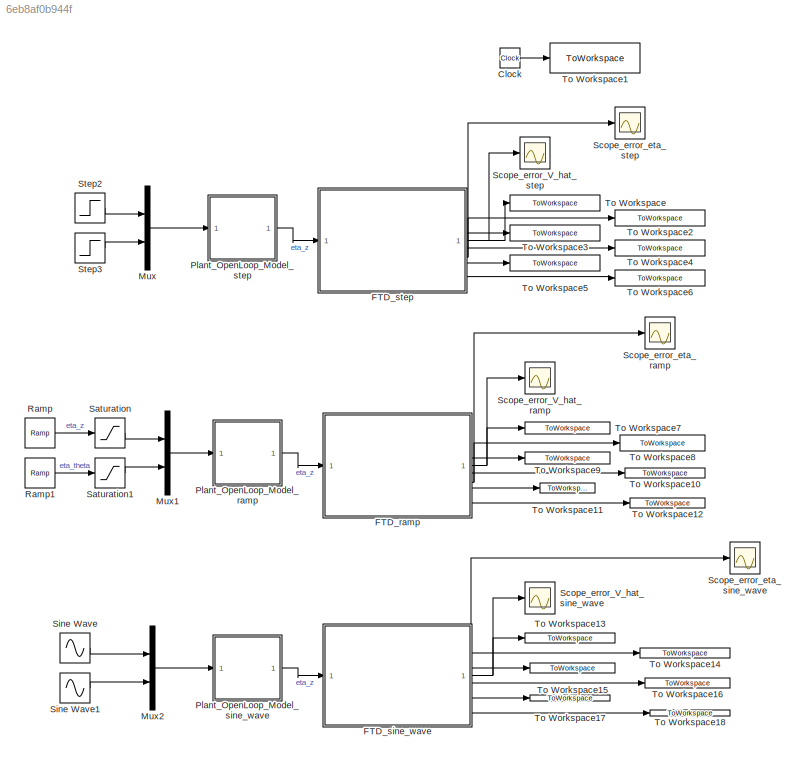
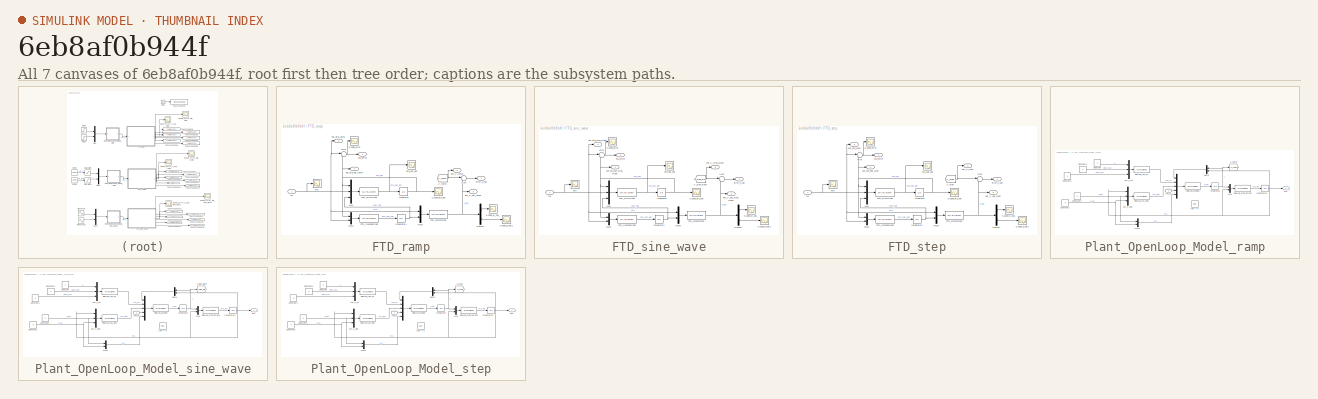
[diagram: thumbnail index - all 7 canvases of the model, root first then tree order]
MODEL slx_6eb8af0b944f
KIND model
CONFIG AbsTol = auto
CONFIG EnableMultiTasking = off
CONFIG FixedStep = 0.001
CONFIG MaxStep = auto
CONFIG MinStep = auto
CONFIG RelTol = 1e-3
CONFIG SampleTimeConstraint = Unconstrained
CONFIG SolverName = FixedStepAuto
CONFIG StartTime = 0.0
CONFIG StopTime = 150
BLOCK [Clock] Clock
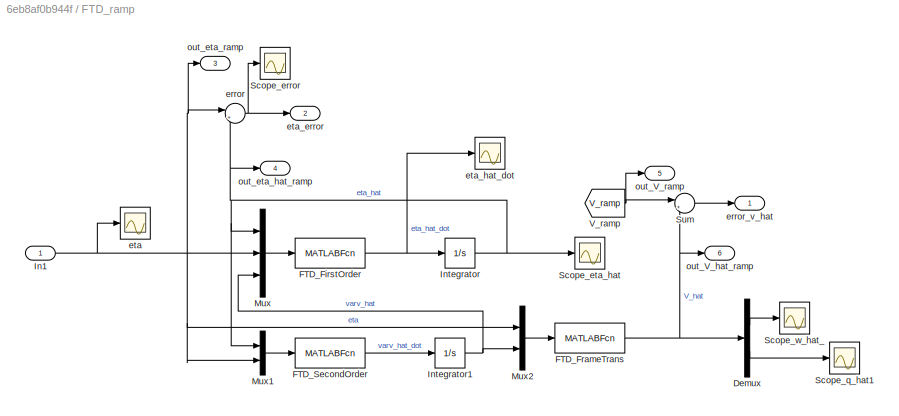
BLOCK [SubSystem] FTD_ramp
BLOCK [Demux] FTD_ramp/Demux
  Outputs = 2
BLOCK [MATLABFcn] FTD_ramp/FTD_FirstOrder
  MATLABFcn = FTD_FirstOrder
  OutputDimensions = 2
  OutputSignalType = real
BLOCK [MATLABFcn] FTD_ramp/FTD_FrameTrans
  MATLABFcn = FTD_FrameTrans
  OutputDimensions = 2
  OutputSignalType = real
BLOCK [MATLABFcn] FTD_ramp/FTD_SecondOrder
  MATLABFcn = FTD_SecondOrder
  OutputDimensions = 2
  OutputSignalType = real
BLOCK [Inport] FTD_ramp/In1
BLOCK [Integrator] FTD_ramp/Integrator
BLOCK [Integrator] FTD_ramp/Integrator1
BLOCK [Mux] FTD_ramp/Mux
  DisplayOption = bar
  Inputs = 3
BLOCK [Mux] FTD_ramp/Mux1
  DisplayOption = bar
  Inputs = 2
BLOCK [Mux] FTD_ramp/Mux2
  DisplayOption = bar
  Inputs = 2
BLOCK [Scope] FTD_ramp/Scope_error
  Floating = off
  NumInputPorts = 1
  ScopeSpecificationString = Simulink.scopes.TimeScopeBlockCfg('CurrentConfiguration', extmgr.ConfigurationSet(extmgr.Configuration('Core','General UI',true),extmgr.Configuration('Core','Source UI',true),extmgr.Configuration('Sources','WiredSimulink',true,'DataLoggingVariableName','ScopeData2'),extmgr.Configuration('Visuals','Time Domain',true,'SerializedDisplays',{struct('MinYLimReal','-0.00868','MaxYLimReal','0.01148','YLab...<+1426ch>  <repeated x3 — deduplicated; at blocks: Scope_error>
BLOCK [Scope] FTD_ramp/Scope_eta_hat
  Floating = off
  NumInputPorts = 1
  ScopeSpecificationString = Simulink.scopes.TimeScopeBlockCfg('CurrentConfiguration', extmgr.ConfigurationSet(extmgr.Configuration('Core','General UI',true),extmgr.Configuration('Core','Source UI',true),extmgr.Configuration('Sources','WiredSimulink',true,'DataLoggingVariableName','ScopeData3'),extmgr.Configuration('Visuals','Time Domain',true,'SerializedDisplays',{struct('MinYLimReal','-3.15863','MaxYLimReal','9.11216','YLab...<+1466ch>  <repeated x3 — deduplicated; at blocks: Scope_eta_hat>
BLOCK [Scope] FTD_ramp/Scope_q_hat1
  Floating = off
  NumInputPorts = 1
  ScopeSpecificationString = Simulink.scopes.TimeScopeBlockCfg('CurrentConfiguration', extmgr.ConfigurationSet(extmgr.Configuration('Core','General UI',true),extmgr.Configuration('Core','Source UI',true),extmgr.Configuration('Sources','WiredSimulink',true,'DataLoggingVariableName','ScopeData4'),extmgr.Configuration('Visuals','Time Domain',true,'SerializedDisplays',{struct('MinYLimReal','-0.12714','MaxYLimReal','1.1443','YLabe...<+1395ch>  <repeated x3 — deduplicated; at blocks: Scope_q_hat1>
BLOCK [Scope] FTD_ramp/Scope_w_hat_
  Floating = off
  NumInputPorts = 1
  ScopeSpecificationString = Simulink.scopes.TimeScopeBlockCfg('CurrentConfiguration', extmgr.ConfigurationSet(extmgr.Configuration('Core','General UI',true),extmgr.Configuration('Core','Source UI',true),extmgr.Configuration('Sources','WiredSimulink',true,'DataLoggingVariableName','ScopeData5'),extmgr.Configuration('Visuals','Time Domain',true,'SerializedDisplays',{struct('MinYLimReal','-0.51851','MaxYLimReal','4.66663','YLab...<+1398ch>  <repeated x3 — deduplicated; at blocks: Scope_w_hat_>
BLOCK [Sum] FTD_ramp/Sum
  Inputs = |+-
BLOCK [From] FTD_ramp/V_ramp
  GotoTag = V_ramp
  TagVisibility = global
BLOCK [Sum] FTD_ramp/error
  Inputs = |+-
BLOCK [Outport] FTD_ramp/error_v_hat
BLOCK [Scope] FTD_ramp/eta
  Floating = off
  NumInputPorts = 1
  ScopeSpecificationString = Simulink.scopes.TimeScopeBlockCfg('CurrentConfiguration', extmgr.ConfigurationSet(extmgr.Configuration('Core','General UI',true),extmgr.Configuration('Core','Source UI',true),extmgr.Configuration('Sources','WiredSimulink',true,'DataLoggingVariableName','ScopeData6'),extmgr.Configuration('Visuals','Time Domain',true,'SerializedDisplays',{struct('MinYLimReal','-0.125','MaxYLimReal','1.125','YLabelRe...<+1570ch>  <repeated x3 — deduplicated; at blocks: eta>
BLOCK [Outport] FTD_ramp/eta_error
  Port = 2
BLOCK [Scope] FTD_ramp/eta_hat_dot
  Floating = off
  NumInputPorts = 1
  ScopeSpecificationString = Simulink.scopes.TimeScopeBlockCfg('CurrentConfiguration', extmgr.ConfigurationSet(extmgr.Configuration('Core','General UI',true),extmgr.Configuration('Core','Source UI',true),extmgr.Configuration('Sources','WiredSimulink',true),extmgr.Configuration('Visuals','Time Domain',true,'SerializedDisplays',{struct('MinYLimReal','-497.7515','MaxYLimReal','1166.41683','YLabelReal','','MinYLimMag',' 0.00000',...<+1549ch>  <repeated x3 — deduplicated; at blocks: eta_hat_dot>
BLOCK [Outport] FTD_ramp/out_V_hat_ramp
  Port = 6
BLOCK [Outport] FTD_ramp/out_V_ramp
  Port = 5
BLOCK [Outport] FTD_ramp/out_eta_hat_ramp
  Port = 4
BLOCK [Outport] FTD_ramp/out_eta_ramp
  Port = 3
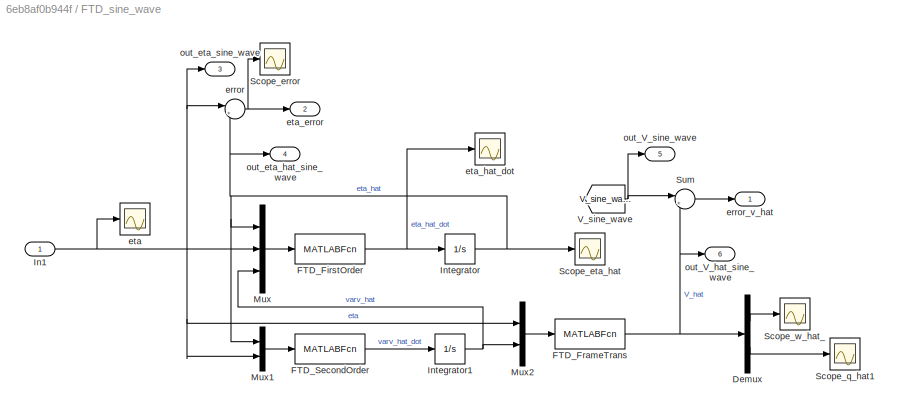
BLOCK [SubSystem] FTD_sine_wave
BLOCK [Demux] FTD_sine_wave/Demux
  Outputs = 2
BLOCK [MATLABFcn] FTD_sine_wave/FTD_FirstOrder
  MATLABFcn = FTD_FirstOrder
  OutputDimensions = 2
  OutputSignalType = real
BLOCK [MATLABFcn] FTD_sine_wave/FTD_FrameTrans
  MATLABFcn = FTD_FrameTrans
  OutputDimensions = 2
  OutputSignalType = real
BLOCK [MATLABFcn] FTD_sine_wave/FTD_SecondOrder
  MATLABFcn = FTD_SecondOrder
  OutputDimensions = 2
  OutputSignalType = real
BLOCK [Inport] FTD_sine_wave/In1
BLOCK [Integrator] FTD_sine_wave/Integrator
BLOCK [Integrator] FTD_sine_wave/Integrator1
BLOCK [Mux] FTD_sine_wave/Mux
  DisplayOption = bar
  Inputs = 3
BLOCK [Mux] FTD_sine_wave/Mux1
  DisplayOption = bar
  Inputs = 2
BLOCK [Mux] FTD_sine_wave/Mux2
  DisplayOption = bar
  Inputs = 2
BLOCK [Scope] FTD_sine_wave/Scope_error
  Floating = off
  NumInputPorts = 1
BLOCK [Scope] FTD_sine_wave/Scope_eta_hat
  Floating = off
  NumInputPorts = 1
BLOCK [Scope] FTD_sine_wave/Scope_q_hat1
  Floating = off
  NumInputPorts = 1
BLOCK [Scope] FTD_sine_wave/Scope_w_hat_
  Floating = off
  NumInputPorts = 1
BLOCK [Sum] FTD_sine_wave/Sum
  Inputs = |+-
BLOCK [From] FTD_sine_wave/V_sine_wave
  GotoTag = V_sine_wave
  TagVisibility = global
BLOCK [Sum] FTD_sine_wave/error
  Inputs = |+-
BLOCK [Outport] FTD_sine_wave/error_v_hat
BLOCK [Scope] FTD_sine_wave/eta
  Floating = off
  NumInputPorts = 1
BLOCK [Outport] FTD_sine_wave/eta_error
  Port = 2
BLOCK [Scope] FTD_sine_wave/eta_hat_dot
  Floating = off
  NumInputPorts = 1
BLOCK [Outport] FTD_sine_wave/out_V_hat_sine_wave
  Port = 6
BLOCK [Outport] FTD_sine_wave/out_V_sine_wave
  Port = 5
BLOCK [Outport] FTD_sine_wave/out_eta_hat_sine_wave
  Port = 4
BLOCK [Outport] FTD_sine_wave/out_eta_sine_wave
  Port = 3
BLOCK [SubSystem] FTD_step
BLOCK [Demux] FTD_step/Demux
  Outputs = 2
BLOCK [MATLABFcn] FTD_step/FTD_FirstOrder
  MATLABFcn = FTD_FirstOrder
  OutputDimensions = 2
  OutputSignalType = real
BLOCK [MATLABFcn] FTD_step/FTD_FrameTrans
  MATLABFcn = FTD_FrameTrans
  OutputDimensions = 2
  OutputSignalType = real
BLOCK [MATLABFcn] FTD_step/FTD_SecondOrder
  MATLABFcn = FTD_SecondOrder
  OutputDimensions = 2
  OutputSignalType = real
BLOCK [Inport] FTD_step/In1
BLOCK [Integrator] FTD_step/Integrator
BLOCK [Integrator] FTD_step/Integrator1
BLOCK [Mux] FTD_step/Mux
  DisplayOption = bar
  Inputs = 3
BLOCK [Mux] FTD_step/Mux1
  DisplayOption = bar
  Inputs = 2
BLOCK [Mux] FTD_step/Mux2
  DisplayOption = bar
  Inputs = 2
BLOCK [Scope] FTD_step/Scope_error
  Floating = off
  NumInputPorts = 1
BLOCK [Scope] FTD_step/Scope_eta_hat
  Floating = off
  NumInputPorts = 1
BLOCK [Scope] FTD_step/Scope_q_hat1
  Floating = off
  NumInputPorts = 1
BLOCK [Scope] FTD_step/Scope_w_hat_
  Floating = off
  NumInputPorts = 1
BLOCK [Sum] FTD_step/Sum
  Inputs = |+-
BLOCK [From] FTD_step/V_step
  GotoTag = V_step
  TagVisibility = global
BLOCK [Sum] FTD_step/error
  Inputs = |+-
BLOCK [Outport] FTD_step/error_v_hat
BLOCK [Scope] FTD_step/eta
  Floating = off
  NumInputPorts = 1
BLOCK [Outport] FTD_step/eta_error
  Port = 2
BLOCK [Scope] FTD_step/eta_hat_dot
  Floating = off
  NumInputPorts = 1
BLOCK [Outport] FTD_step/out_V_hat_step
  Port = 6
BLOCK [Outport] FTD_step/out_V_step
  Port = 5
BLOCK [Outport] FTD_step/out_eta_hat_step
  Port = 4
BLOCK [Outport] FTD_step/out_eta_step
  Port = 3
BLOCK [Mux] Mux
  DisplayOption = bar
  Inputs = 2
BLOCK [Mux] Mux1
  DisplayOption = bar
  Inputs = 2
BLOCK [Mux] Mux2
  DisplayOption = bar
  Inputs = 2
BLOCK [SubSystem] Plant_OpenLoop_Model_ramp
BLOCK [Mux] Plant_OpenLoop_Model_ramp/ 
  DisplayOption = bar
  Inputs = 5
BLOCK [Constant] Plant_OpenLoop_Model_ramp/Constant
  OutDataTypeStr = Inherit: Inherit via back propagation
  Value = 2
BLOCK [Constant] Plant_OpenLoop_Model_ramp/Constant1
  Value = 0
BLOCK [Constant] Plant_OpenLoop_Model_ramp/Constant2
  Value = 0
BLOCK [Constant] Plant_OpenLoop_Model_ramp/Constant3
  Value = 0
BLOCK [Constant] Plant_OpenLoop_Model_ramp/Constant4
  Value = 0
BLOCK [Integrator] Plant_OpenLoop_Model_ramp/Integrator
BLOCK [Integrator] Plant_OpenLoop_Model_ramp/Integrator1
BLOCK [Mux] Plant_OpenLoop_Model_ramp/Mux
  DisplayOption = bar
  Inputs = 2
BLOCK [Mux] Plant_OpenLoop_Model_ramp/Mux2
  DisplayOption = bar
  Inputs = 2
BLOCK [MATLABFcn] Plant_OpenLoop_Model_ramp/REMUS_DynEqn
  MATLABFcn = REMUS_DynEqn
  OutputDimensions = 2
  OutputSignalType = real
BLOCK [MATLABFcn] Plant_OpenLoop_Model_ramp/REMUS_FrameTrans
  MATLABFcn = REMUS_FrameTrans
  OutputDimensions = 2
  OutputSignalType = real
BLOCK [MATLABFcn] Plant_OpenLoop_Model_ramp/REMUS_tau_VBS
  MATLABFcn = REMUS_tau_VBS
  OutputDimensions = 2
  OutputSignalType = real
BLOCK [MATLABFcn] Plant_OpenLoop_Model_ramp/REMUS_tau_cp
  MATLABFcn = REMUS_tau_cp
  OutputDimensions = 2
  OutputSignalType = real
BLOCK [Mux] Plant_OpenLoop_Model_ramp/V&eta
  DisplayOption = bar
  Inputs = 2
  NameLocation = top
BLOCK [Goto] Plant_OpenLoop_Model_ramp/V_ramp
  GotoTag = V_ramp
  TagVisibility = global
BLOCK [Outport] Plant_OpenLoop_Model_ramp/eta
BLOCK [Inport] Plant_OpenLoop_Model_ramp/tau_w
BLOCK [Constant] Plant_OpenLoop_Model_ramp/test = 0
  Value = [0,0]
BLOCK [Mux] Plant_OpenLoop_Model_ramp/var_c_VBS
  DisplayOption = bar
  Inputs = 3
BLOCK [Mux] Plant_OpenLoop_Model_ramp/var_c_cp
  DisplayOption = bar
  Inputs = 3
BLOCK [SubSystem] Plant_OpenLoop_Model_sine_wave
BLOCK [Mux] Plant_OpenLoop_Model_sine_wave/ 
  DisplayOption = bar
  Inputs = 5
BLOCK [Constant] Plant_OpenLoop_Model_sine_wave/Constant
  OutDataTypeStr = Inherit: Inherit via back propagation
  Value = 2
BLOCK [Constant] Plant_OpenLoop_Model_sine_wave/Constant1
  Value = 0
BLOCK [Constant] Plant_OpenLoop_Model_sine_wave/Constant2
  Value = 0
BLOCK [Constant] Plant_OpenLoop_Model_sine_wave/Constant3
  Value = 0
BLOCK [Constant] Plant_OpenLoop_Model_sine_wave/Constant4
  Value = 0
BLOCK [Integrator] Plant_OpenLoop_Model_sine_wave/Integrator
BLOCK [Integrator] Plant_OpenLoop_Model_sine_wave/Integrator1
BLOCK [Mux] Plant_OpenLoop_Model_sine_wave/Mux
  DisplayOption = bar
  Inputs = 2
BLOCK [Mux] Plant_OpenLoop_Model_sine_wave/Mux2
  DisplayOption = bar
  Inputs = 2
BLOCK [MATLABFcn] Plant_OpenLoop_Model_sine_wave/REMUS_DynEqn
  MATLABFcn = REMUS_DynEqn
  OutputDimensions = 2
  OutputSignalType = real
BLOCK [MATLABFcn] Plant_OpenLoop_Model_sine_wave/REMUS_FrameTrans
  MATLABFcn = REMUS_FrameTrans
  OutputDimensions = 2
  OutputSignalType = real
BLOCK [MATLABFcn] Plant_OpenLoop_Model_sine_wave/REMUS_tau_VBS
  MATLABFcn = REMUS_tau_VBS
  OutputDimensions = 2
  OutputSignalType = real
BLOCK [MATLABFcn] Plant_OpenLoop_Model_sine_wave/REMUS_tau_cp
  MATLABFcn = REMUS_tau_cp
  OutputDimensions = 2
  OutputSignalType = real
BLOCK [Mux] Plant_OpenLoop_Model_sine_wave/V&eta
  DisplayOption = bar
  Inputs = 2
  NameLocation = top
BLOCK [Goto] Plant_OpenLoop_Model_sine_wave/V_sine_wave
  GotoTag = V_sine_wave
  TagVisibility = global
BLOCK [Outport] Plant_OpenLoop_Model_sine_wave/eta
BLOCK [Inport] Plant_OpenLoop_Model_sine_wave/tau_w
BLOCK [Constant] Plant_OpenLoop_Model_sine_wave/test = 0
  Value = [0,0]
BLOCK [Mux] Plant_OpenLoop_Model_sine_wave/var_c_VBS
  DisplayOption = bar
  Inputs = 3
BLOCK [Mux] Plant_OpenLoop_Model_sine_wave/var_c_cp
  DisplayOption = bar
  Inputs = 3
BLOCK [SubSystem] Plant_OpenLoop_Model_step
BLOCK [Mux] Plant_OpenLoop_Model_step/ 
  DisplayOption = bar
  Inputs = 5
BLOCK [Constant] Plant_OpenLoop_Model_step/Constant
  OutDataTypeStr = Inherit: Inherit via back propagation
  Value = 2
BLOCK [Constant] Plant_OpenLoop_Model_step/Constant1
  Value = 0
BLOCK [Constant] Plant_OpenLoop_Model_step/Constant2
  Value = 0
BLOCK [Constant] Plant_OpenLoop_Model_step/Constant3
  Value = 0
BLOCK [Constant] Plant_OpenLoop_Model_step/Constant4
  Value = 0
BLOCK [Integrator] Plant_OpenLoop_Model_step/Integrator
BLOCK [Integrator] Plant_OpenLoop_Model_step/Integrator1
BLOCK [Mux] Plant_OpenLoop_Model_step/Mux
  DisplayOption = bar
  Inputs = 2
BLOCK [Mux] Plant_OpenLoop_Model_step/Mux2
  DisplayOption = bar
  Inputs = 2
BLOCK [MATLABFcn] Plant_OpenLoop_Model_step/REMUS_DynEqn
  MATLABFcn = REMUS_DynEqn
  OutputDimensions = 2
  OutputSignalType = real
BLOCK [MATLABFcn] Plant_OpenLoop_Model_step/REMUS_FrameTrans
  MATLABFcn = REMUS_FrameTrans
  OutputDimensions = 2
  OutputSignalType = real
BLOCK [MATLABFcn] Plant_OpenLoop_Model_step/REMUS_tau_VBS
  MATLABFcn = REMUS_tau_VBS
  OutputDimensions = 2
  OutputSignalType = real
BLOCK [MATLABFcn] Plant_OpenLoop_Model_step/REMUS_tau_cp
  MATLABFcn = REMUS_tau_cp
  OutputDimensions = 2
  OutputSignalType = real
BLOCK [Mux] Plant_OpenLoop_Model_step/V&eta
  DisplayOption = bar
  Inputs = 2
  NameLocation = top
BLOCK [Goto] Plant_OpenLoop_Model_step/V_step
  GotoTag = V_step
  TagVisibility = global
BLOCK [Outport] Plant_OpenLoop_Model_step/eta
BLOCK [Inport] Plant_OpenLoop_Model_step/tau_w
BLOCK [Constant] Plant_OpenLoop_Model_step/test = 0
  Value = [0,0]
BLOCK [Mux] Plant_OpenLoop_Model_step/var_c_VBS
  DisplayOption = bar
  Inputs = 3
BLOCK [Mux] Plant_OpenLoop_Model_step/var_c_cp
  DisplayOption = bar
  Inputs = 3
BLOCK [Reference] Ramp  REF=simulink/Sources/Ramp
  SourceBlock = simulink/Sources/Ramp
  SourceType = Ramp
BLOCK [Reference] Ramp1  REF=simulink/Sources/Ramp
  SourceBlock = simulink/Sources/Ramp
  SourceType = Ramp
BLOCK [Saturate] Saturation
  LowerLimit = 0
  UpperLimit = 10
BLOCK [Saturate] Saturation1
  LowerLimit = 0
  UpperLimit = 10
BLOCK [Scope] Scope_error_V_hat_ramp
  Floating = off
  NumInputPorts = 1
  ScopeSpecificationString = Simulink.scopes.TimeScopeBlockCfg('CurrentConfiguration', extmgr.ConfigurationSet(extmgr.Configuration('Core','General UI',true),extmgr.Configuration('Core','Source UI',true),extmgr.Configuration('Sources','WiredSimulink',true,'DataLoggingVariableName','ScopeData8'),extmgr.Configuration('Visuals','Time Domain',true,'SerializedDisplays',{struct('MinYLimReal','-0.00959','MaxYLimReal','0.00561','YLab...<+1440ch>
BLOCK [Scope] Scope_error_V_hat_sine_wave
  Floating = off
  NameLocation = right
  NumInputPorts = 1
  ScopeSpecificationString = Simulink.scopes.TimeScopeBlockCfg('CurrentConfiguration', extmgr.ConfigurationSet(extmgr.Configuration('Core','General UI',true),extmgr.Configuration('Core','Source UI',true),extmgr.Configuration('Sources','WiredSimulink',true,'DataLoggingVariableName','ScopeData10'),extmgr.Configuration('Visuals','Time Domain',true,'SerializedDisplays',{struct('MinYLimReal','-0.00217','MaxYLimReal','0.00217','YLa...<+1451ch>
BLOCK [Scope] Scope_error_V_hat_step
  Floating = off
  NumInputPorts = 1
  ScopeSpecificationString = Simulink.scopes.TimeScopeBlockCfg('CurrentConfiguration', extmgr.ConfigurationSet(extmgr.Configuration('Core','General UI',true),extmgr.Configuration('Core','Source UI',true),extmgr.Configuration('Sources','WiredSimulink',true,'DataLoggingVariableName','ScopeData1'),extmgr.Configuration('Visuals','Time Domain',true,'SerializedDisplays',{struct('MinYLimReal','-0.00232','MaxYLimReal','0.00219','YLab...<+1459ch>
BLOCK [Scope] Scope_error_eta_ramp
  Floating = off
  NumInputPorts = 1
  ScopeSpecificationString = Simulink.scopes.TimeScopeBlockCfg('CurrentConfiguration', extmgr.ConfigurationSet(extmgr.Configuration('Core','General UI',true),extmgr.Configuration('Core','Source UI',true),extmgr.Configuration('Sources','WiredSimulink',true,'DataLoggingVariableName','ScopeData9'),extmgr.Configuration('Visuals','Time Domain',true,'SerializedDisplays',{struct('MinYLimReal','-0.00106','MaxYLimReal','0.00105','YLab...<+1411ch>
BLOCK [Scope] Scope_error_eta_sine_wave
  Floating = off
  NumInputPorts = 1
  ScopeSpecificationString = Simulink.scopes.TimeScopeBlockCfg('CurrentConfiguration', extmgr.ConfigurationSet(extmgr.Configuration('Core','General UI',true),extmgr.Configuration('Core','Source UI',true),extmgr.Configuration('Sources','WiredSimulink',true,'DataLoggingVariableName','ScopeData11'),extmgr.Configuration('Visuals','Time Domain',true,'SerializedDisplays',{struct('MinYLimReal','-0.00105','MaxYLimReal','0.00105','YLa...<+1451ch>
BLOCK [Scope] Scope_error_eta_step
  Floating = off
  NumInputPorts = 1
  ScopeSpecificationString = Simulink.scopes.TimeScopeBlockCfg('CurrentConfiguration', extmgr.ConfigurationSet(extmgr.Configuration('Core','General UI',true),extmgr.Configuration('Core','Source UI',true),extmgr.Configuration('Sources','WiredSimulink',true,'DataLoggingVariableName','ScopeData7'),extmgr.Configuration('Visuals','Time Domain',true,'SerializedDisplays',{struct('MinYLimReal','-0.00105','MaxYLimReal','0.00105','YLab...<+1440ch>
BLOCK [Sin] Sine Wave
  Frequency = 0.5*pi
  Phase = 0.5*pi
  SampleTime = 0
BLOCK [Sin] Sine Wave1
  Frequency = 0.5*pi
  Phase = 0.5*pi
  SampleTime = 0
BLOCK [Step] Step2
  SampleTime = 0
  Time = 0
BLOCK [Step] Step3
  SampleTime = 0
  Time = 0
BLOCK [ToWorkspace] To Workspace
  FixptAsFi = on
  MaxDataPoints = inf
  SampleTime = -1
  SaveFormat = Timeseries
  VariableName = error_V_hat_step
BLOCK [ToWorkspace] To Workspace1
  FixptAsFi = on
  MaxDataPoints = inf
  SampleTime = -1
  SaveFormat = Timeseries
  VariableName = t
BLOCK [ToWorkspace] To Workspace10
  FixptAsFi = on
  MaxDataPoints = inf
  SampleTime = -1
  SaveFormat = Timeseries
  VariableName = eta_hat_ramp
BLOCK [ToWorkspace] To Workspace11
  FixptAsFi = on
  MaxDataPoints = inf
  SampleTime = -1
  SaveFormat = Timeseries
  VariableName = V_ramp
BLOCK [ToWorkspace] To Workspace12
  FixptAsFi = on
  MaxDataPoints = inf
  SampleTime = -1
  SaveFormat = Timeseries
  VariableName = V_hat_ramp
BLOCK [ToWorkspace] To Workspace13
  FixptAsFi = on
  MaxDataPoints = inf
  SampleTime = -1
  SaveFormat = Timeseries
  VariableName = error_V_hat_sine_wave
BLOCK [ToWorkspace] To Workspace14
  FixptAsFi = on
  MaxDataPoints = inf
  SampleTime = -1
  SaveFormat = Timeseries
  VariableName = error_eta_sine_wave
BLOCK [ToWorkspace] To Workspace15
  FixptAsFi = on
  MaxDataPoints = inf
  SampleTime = -1
  SaveFormat = Timeseries
  VariableName = eta_sine_wave
BLOCK [ToWorkspace] To Workspace16
  FixptAsFi = on
  MaxDataPoints = inf
  SampleTime = -1
  SaveFormat = Timeseries
  VariableName = eta_hat_sine_wave
BLOCK [ToWorkspace] To Workspace17
  FixptAsFi = on
  MaxDataPoints = inf
  SampleTime = -1
  SaveFormat = Timeseries
  VariableName = V_sine_wave
BLOCK [ToWorkspace] To Workspace18
  FixptAsFi = on
  MaxDataPoints = inf
  SampleTime = -1
  SaveFormat = Timeseries
  VariableName = V_hat_sine_wave
BLOCK [ToWorkspace] To Workspace2
  FixptAsFi = on
  MaxDataPoints = inf
  SampleTime = -1
  SaveFormat = Timeseries
  VariableName = error_eta_step
BLOCK [ToWorkspace] To Workspace3
  FixptAsFi = on
  MaxDataPoints = inf
  SampleTime = -1
  SaveFormat = Timeseries
  VariableName = eta_step
BLOCK [ToWorkspace] To Workspace4
  FixptAsFi = on
  MaxDataPoints = inf
  SampleTime = -1
  SaveFormat = Timeseries
  VariableName = eta_hat_step
BLOCK [ToWorkspace] To Workspace5
  FixptAsFi = on
  MaxDataPoints = inf
  SampleTime = -1
  SaveFormat = Timeseries
  VariableName = out_V_step
BLOCK [ToWorkspace] To Workspace6
  FixptAsFi = on
  MaxDataPoints = inf
  SampleTime = -1
  SaveFormat = Timeseries
  VariableName = V_hat_step
BLOCK [ToWorkspace] To Workspace7
  FixptAsFi = on
  MaxDataPoints = inf
  SampleTime = -1
  SaveFormat = Timeseries
  VariableName = error_V_hat_ramp
BLOCK [ToWorkspace] To Workspace8
  FixptAsFi = on
  MaxDataPoints = inf
  SampleTime = -1
  SaveFormat = Timeseries
  VariableName = error_eta_ramp
BLOCK [ToWorkspace] To Workspace9
  FixptAsFi = on
  MaxDataPoints = inf
  SampleTime = -1
  SaveFormat = Timeseries
  VariableName = eta_ramp
LINE Clock:1 -> To Workspace1:1
LINE FTD_ramp/Demux:1 -> FTD_ramp/Scope_w_hat_:1
LINE FTD_ramp/Demux:2 -> FTD_ramp/Scope_q_hat1:1
NET FTD_ramp/FTD_FirstOrder:1 -> FTD_ramp/Integrator:1, FTD_ramp/eta_hat_dot:1
NET FTD_ramp/FTD_FrameTrans:1 -> FTD_ramp/Demux:1, FTD_ramp/Sum:2, FTD_ramp/out_V_hat_ramp:1
LINE FTD_ramp/FTD_SecondOrder:1 -> FTD_ramp/Integrator1:1
NET FTD_ramp/In1:1 -> FTD_ramp/Mux1:2, FTD_ramp/Mux2:1, FTD_ramp/Mux:2, FTD_ramp/error:1, FTD_ramp/eta:1, FTD_ramp/out_eta_ramp:1
NET FTD_ramp/Integrator1:1 -> FTD_ramp/Mux2:2, FTD_ramp/Mux:3
NET FTD_ramp/Integrator:1 -> FTD_ramp/Mux1:1, FTD_ramp/Mux:1, FTD_ramp/Scope_eta_hat:1, FTD_ramp/error:2, FTD_ramp/out_eta_hat_ramp:1
LINE FTD_ramp/Mux1:1 -> FTD_ramp/FTD_SecondOrder:1
LINE FTD_ramp/Mux2:1 -> FTD_ramp/FTD_FrameTrans:1
LINE FTD_ramp/Mux:1 -> FTD_ramp/FTD_FirstOrder:1
LINE FTD_ramp/Sum:1 -> FTD_ramp/error_v_hat:1
NET FTD_ramp/V_ramp:1 -> FTD_ramp/Sum:1, FTD_ramp/out_V_ramp:1
NET FTD_ramp/error:1 -> FTD_ramp/Scope_error:1, FTD_ramp/eta_error:1
NET FTD_ramp:1 -> Scope_error_V_hat_ramp:1, To Workspace7:1
NET FTD_ramp:2 -> Scope_error_eta_ramp:1, To Workspace8:1
LINE FTD_ramp:3 -> To Workspace9:1
LINE FTD_ramp:4 -> To Workspace10:1
LINE FTD_ramp:5 -> To Workspace11:1
LINE FTD_ramp:6 -> To Workspace12:1
LINE FTD_sine_wave/Demux:1 -> FTD_sine_wave/Scope_w_hat_:1
LINE FTD_sine_wave/Demux:2 -> FTD_sine_wave/Scope_q_hat1:1
NET FTD_sine_wave/FTD_FirstOrder:1 -> FTD_sine_wave/Integrator:1, FTD_sine_wave/eta_hat_dot:1
NET FTD_sine_wave/FTD_FrameTrans:1 -> FTD_sine_wave/Demux:1, FTD_sine_wave/Sum:2, FTD_sine_wave/out_V_hat_sine_wave:1
LINE FTD_sine_wave/FTD_SecondOrder:1 -> FTD_sine_wave/Integrator1:1
NET FTD_sine_wave/In1:1 -> FTD_sine_wave/Mux1:2, FTD_sine_wave/Mux2:1, FTD_sine_wave/Mux:2, FTD_sine_wave/error:1, FTD_sine_wave/eta:1, FTD_sine_wave/out_eta_sine_wave:1
NET FTD_sine_wave/Integrator1:1 -> FTD_sine_wave/Mux2:2, FTD_sine_wave/Mux:3
NET FTD_sine_wave/Integrator:1 -> FTD_sine_wave/Mux1:1, FTD_sine_wave/Mux:1, FTD_sine_wave/Scope_eta_hat:1, FTD_sine_wave/error:2, FTD_sine_wave/out_eta_hat_sine_wave:1
LINE FTD_sine_wave/Mux1:1 -> FTD_sine_wave/FTD_SecondOrder:1
LINE FTD_sine_wave/Mux2:1 -> FTD_sine_wave/FTD_FrameTrans:1
LINE FTD_sine_wave/Mux:1 -> FTD_sine_wave/FTD_FirstOrder:1
LINE FTD_sine_wave/Sum:1 -> FTD_sine_wave/error_v_hat:1
NET FTD_sine_wave/V_sine_wave:1 -> FTD_sine_wave/Sum:1, FTD_sine_wave/out_V_sine_wave:1
NET FTD_sine_wave/error:1 -> FTD_sine_wave/Scope_error:1, FTD_sine_wave/eta_error:1
NET FTD_sine_wave:1 -> Scope_error_V_hat_sine_wave:1, To Workspace13:1
NET FTD_sine_wave:2 -> Scope_error_eta_sine_wave:1, To Workspace14:1
LINE FTD_sine_wave:3 -> To Workspace15:1
LINE FTD_sine_wave:4 -> To Workspace16:1
LINE FTD_sine_wave:5 -> To Workspace17:1
LINE FTD_sine_wave:6 -> To Workspace18:1
LINE FTD_step/Demux:1 -> FTD_step/Scope_w_hat_:1
LINE FTD_step/Demux:2 -> FTD_step/Scope_q_hat1:1
NET FTD_step/FTD_FirstOrder:1 -> FTD_step/Integrator:1, FTD_step/eta_hat_dot:1
NET FTD_step/FTD_FrameTrans:1 -> FTD_step/Demux:1, FTD_step/Sum:2, FTD_step/out_V_hat_step:1
LINE FTD_step/FTD_SecondOrder:1 -> FTD_step/Integrator1:1
NET FTD_step/In1:1 -> FTD_step/Mux1:2, FTD_step/Mux2:1, FTD_step/Mux:2, FTD_step/error:1, FTD_step/eta:1, FTD_step/out_eta_step:1
NET FTD_step/Integrator1:1 -> FTD_step/Mux2:2, FTD_step/Mux:3
NET FTD_step/Integrator:1 -> FTD_step/Mux1:1, FTD_step/Mux:1, FTD_step/Scope_eta_hat:1, FTD_step/error:2, FTD_step/out_eta_hat_step:1
LINE FTD_step/Mux1:1 -> FTD_step/FTD_SecondOrder:1
LINE FTD_step/Mux2:1 -> FTD_step/FTD_FrameTrans:1
LINE FTD_step/Mux:1 -> FTD_step/FTD_FirstOrder:1
LINE FTD_step/Sum:1 -> FTD_step/error_v_hat:1
NET FTD_step/V_step:1 -> FTD_step/Sum:1, FTD_step/out_V_step:1
NET FTD_step/error:1 -> FTD_step/Scope_error:1, FTD_step/eta_error:1
NET FTD_step:1 -> Scope_error_V_hat_step:1, To Workspace:1
NET FTD_step:2 -> Scope_error_eta_step:1, To Workspace2:1
LINE FTD_step:3 -> To Workspace3:1
LINE FTD_step:4 -> To Workspace4:1
LINE FTD_step:5 -> To Workspace5:1
LINE FTD_step:6 -> To Workspace6:1
LINE Mux1:1 -> Plant_OpenLoop_Model_ramp:1
LINE Mux2:1 -> Plant_OpenLoop_Model_sine_wave:1
LINE Mux:1 -> Plant_OpenLoop_Model_step:1
LINE Plant_OpenLoop_Model_ramp/ :1 -> Plant_OpenLoop_Model_ramp/REMUS_DynEqn:1
LINE Plant_OpenLoop_Model_ramp/Constant1:1 -> Plant_OpenLoop_Model_ramp/var_c_cp:3
NET Plant_OpenLoop_Model_ramp/Constant2:1 -> Plant_OpenLoop_Model_ramp/Mux2:1, Plant_OpenLoop_Model_ramp/var_c_VBS:2
NET Plant_OpenLoop_Model_ramp/Constant3:1 -> Plant_OpenLoop_Model_ramp/Mux2:2, Plant_OpenLoop_Model_ramp/var_c_VBS:3
LINE Plant_OpenLoop_Model_ramp/Constant4:1 -> Plant_OpenLoop_Model_ramp/var_c_cp:2
LINE Plant_OpenLoop_Model_ramp/Constant:1 -> Plant_OpenLoop_Model_ramp/var_c_cp:1
NET Plant_OpenLoop_Model_ramp/Integrator1:1 -> Plant_OpenLoop_Model_ramp/Mux:2, Plant_OpenLoop_Model_ramp/V&eta:2, Plant_OpenLoop_Model_ramp/eta:1, Plant_OpenLoop_Model_ramp/var_c_VBS:1
NET Plant_OpenLoop_Model_ramp/Integrator:1 -> Plant_OpenLoop_Model_ramp/Mux:1, Plant_OpenLoop_Model_ramp/V&eta:1, Plant_OpenLoop_Model_ramp/V_ramp:1
LINE Plant_OpenLoop_Model_ramp/Mux2:1 -> Plant_OpenLoop_Model_ramp/ :5
LINE Plant_OpenLoop_Model_ramp/Mux:1 -> Plant_OpenLoop_Model_ramp/REMUS_FrameTrans:1
LINE Plant_OpenLoop_Model_ramp/REMUS_DynEqn:1 -> Plant_OpenLoop_Model_ramp/Integrator:1
LINE Plant_OpenLoop_Model_ramp/REMUS_FrameTrans:1 -> Plant_OpenLoop_Model_ramp/Integrator1:1
LINE Plant_OpenLoop_Model_ramp/REMUS_tau_VBS:1 -> Plant_OpenLoop_Model_ramp/ :3
LINE Plant_OpenLoop_Model_ramp/REMUS_tau_cp:1 -> Plant_OpenLoop_Model_ramp/ :2
LINE Plant_OpenLoop_Model_ramp/V&eta:1 -> Plant_OpenLoop_Model_ramp/ :1
LINE Plant_OpenLoop_Model_ramp/tau_w:1 -> Plant_OpenLoop_Model_ramp/ :4
LINE Plant_OpenLoop_Model_ramp/var_c_VBS:1 -> Plant_OpenLoop_Model_ramp/REMUS_tau_VBS:1
LINE Plant_OpenLoop_Model_ramp/var_c_cp:1 -> Plant_OpenLoop_Model_ramp/REMUS_tau_cp:1
LINE Plant_OpenLoop_Model_ramp:1 -> FTD_ramp:1
LINE Plant_OpenLoop_Model_sine_wave/ :1 -> Plant_OpenLoop_Model_sine_wave/REMUS_DynEqn:1
LINE Plant_OpenLoop_Model_sine_wave/Constant1:1 -> Plant_OpenLoop_Model_sine_wave/var_c_cp:3
NET Plant_OpenLoop_Model_sine_wave/Constant2:1 -> Plant_OpenLoop_Model_sine_wave/Mux2:1, Plant_OpenLoop_Model_sine_wave/var_c_VBS:2
NET Plant_OpenLoop_Model_sine_wave/Constant3:1 -> Plant_OpenLoop_Model_sine_wave/Mux2:2, Plant_OpenLoop_Model_sine_wave/var_c_VBS:3
LINE Plant_OpenLoop_Model_sine_wave/Constant4:1 -> Plant_OpenLoop_Model_sine_wave/var_c_cp:2
LINE Plant_OpenLoop_Model_sine_wave/Constant:1 -> Plant_OpenLoop_Model_sine_wave/var_c_cp:1
NET Plant_OpenLoop_Model_sine_wave/Integrator1:1 -> Plant_OpenLoop_Model_sine_wave/Mux:2, Plant_OpenLoop_Model_sine_wave/V&eta:2, Plant_OpenLoop_Model_sine_wave/eta:1, Plant_OpenLoop_Model_sine_wave/var_c_VBS:1
NET Plant_OpenLoop_Model_sine_wave/Integrator:1 -> Plant_OpenLoop_Model_sine_wave/Mux:1, Plant_OpenLoop_Model_sine_wave/V&eta:1, Plant_OpenLoop_Model_sine_wave/V_sine_wave:1
LINE Plant_OpenLoop_Model_sine_wave/Mux2:1 -> Plant_OpenLoop_Model_sine_wave/ :5
LINE Plant_OpenLoop_Model_sine_wave/Mux:1 -> Plant_OpenLoop_Model_sine_wave/REMUS_FrameTrans:1
LINE Plant_OpenLoop_Model_sine_wave/REMUS_DynEqn:1 -> Plant_OpenLoop_Model_sine_wave/Integrator:1
LINE Plant_OpenLoop_Model_sine_wave/REMUS_FrameTrans:1 -> Plant_OpenLoop_Model_sine_wave/Integrator1:1
LINE Plant_OpenLoop_Model_sine_wave/REMUS_tau_VBS:1 -> Plant_OpenLoop_Model_sine_wave/ :3
LINE Plant_OpenLoop_Model_sine_wave/REMUS_tau_cp:1 -> Plant_OpenLoop_Model_sine_wave/ :2
LINE Plant_OpenLoop_Model_sine_wave/V&eta:1 -> Plant_OpenLoop_Model_sine_wave/ :1
LINE Plant_OpenLoop_Model_sine_wave/tau_w:1 -> Plant_OpenLoop_Model_sine_wave/ :4
LINE Plant_OpenLoop_Model_sine_wave/var_c_VBS:1 -> Plant_OpenLoop_Model_sine_wave/REMUS_tau_VBS:1
LINE Plant_OpenLoop_Model_sine_wave/var_c_cp:1 -> Plant_OpenLoop_Model_sine_wave/REMUS_tau_cp:1
LINE Plant_OpenLoop_Model_sine_wave:1 -> FTD_sine_wave:1
LINE Plant_OpenLoop_Model_step/ :1 -> Plant_OpenLoop_Model_step/REMUS_DynEqn:1
LINE Plant_OpenLoop_Model_step/Constant1:1 -> Plant_OpenLoop_Model_step/var_c_cp:3
NET Plant_OpenLoop_Model_step/Constant2:1 -> Plant_OpenLoop_Model_step/Mux2:1, Plant_OpenLoop_Model_step/var_c_VBS:2
NET Plant_OpenLoop_Model_step/Constant3:1 -> Plant_OpenLoop_Model_step/Mux2:2, Plant_OpenLoop_Model_step/var_c_VBS:3
LINE Plant_OpenLoop_Model_step/Constant4:1 -> Plant_OpenLoop_Model_step/var_c_cp:2
LINE Plant_OpenLoop_Model_step/Constant:1 -> Plant_OpenLoop_Model_step/var_c_cp:1
NET Plant_OpenLoop_Model_step/Integrator1:1 -> Plant_OpenLoop_Model_step/Mux:2, Plant_OpenLoop_Model_step/V&eta:2, Plant_OpenLoop_Model_step/eta:1, Plant_OpenLoop_Model_step/var_c_VBS:1
NET Plant_OpenLoop_Model_step/Integrator:1 -> Plant_OpenLoop_Model_step/Mux:1, Plant_OpenLoop_Model_step/V&eta:1, Plant_OpenLoop_Model_step/V_step:1
LINE Plant_OpenLoop_Model_step/Mux2:1 -> Plant_OpenLoop_Model_step/ :5
LINE Plant_OpenLoop_Model_step/Mux:1 -> Plant_OpenLoop_Model_step/REMUS_FrameTrans:1
LINE Plant_OpenLoop_Model_step/REMUS_DynEqn:1 -> Plant_OpenLoop_Model_step/Integrator:1
LINE Plant_OpenLoop_Model_step/REMUS_FrameTrans:1 -> Plant_OpenLoop_Model_step/Integrator1:1
LINE Plant_OpenLoop_Model_step/REMUS_tau_VBS:1 -> Plant_OpenLoop_Model_step/ :3
LINE Plant_OpenLoop_Model_step/REMUS_tau_cp:1 -> Plant_OpenLoop_Model_step/ :2
LINE Plant_OpenLoop_Model_step/V&eta:1 -> Plant_OpenLoop_Model_step/ :1
LINE Plant_OpenLoop_Model_step/tau_w:1 -> Plant_OpenLoop_Model_step/ :4
LINE Plant_OpenLoop_Model_step/var_c_VBS:1 -> Plant_OpenLoop_Model_step/REMUS_tau_VBS:1
LINE Plant_OpenLoop_Model_step/var_c_cp:1 -> Plant_OpenLoop_Model_step/REMUS_tau_cp:1
LINE Plant_OpenLoop_Model_step:1 -> FTD_step:1
LINE Ramp1:1 -> Saturation1:1
LINE Ramp:1 -> Saturation:1
LINE Saturation1:1 -> Mux1:2
LINE Saturation:1 -> Mux1:1
LINE Sine Wave1:1 -> Mux2:2
LINE Sine Wave:1 -> Mux2:1
LINE Step2:1 -> Mux:1
LINE Step3:1 -> Mux:2
note: NET lines group one-source signal fan-out (src -> all destinations, sorted); 1:1 wires keep LINE
